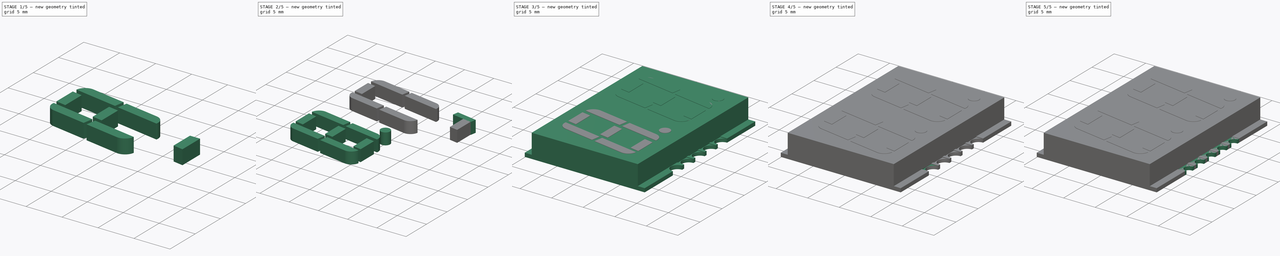
[diagram: build sequence overview — one tinted view per stage of 5, left to right]
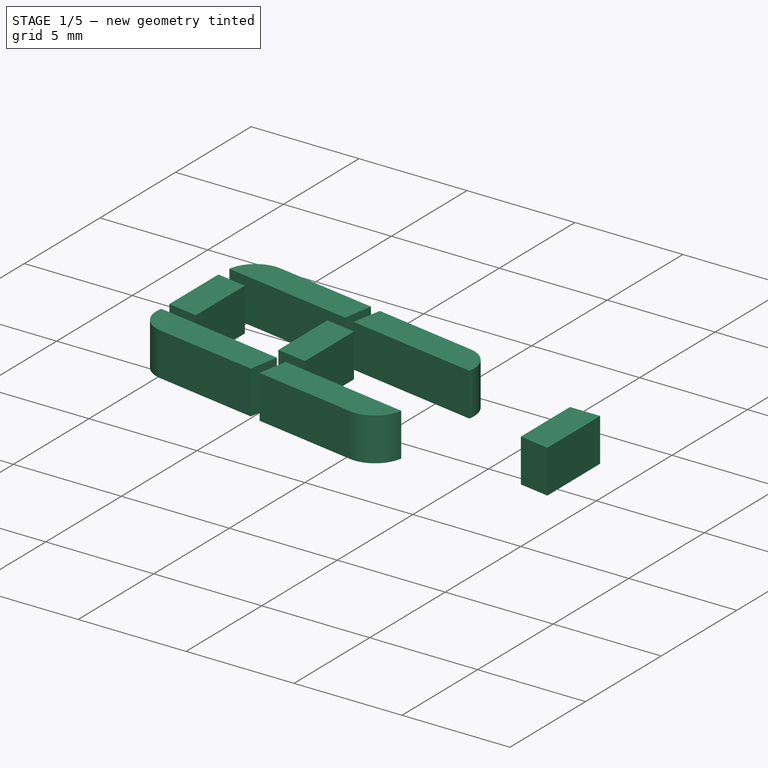
[diagram: stage 1 of 5 — iso view after this stage's code; geometry added in this stage tinted green]
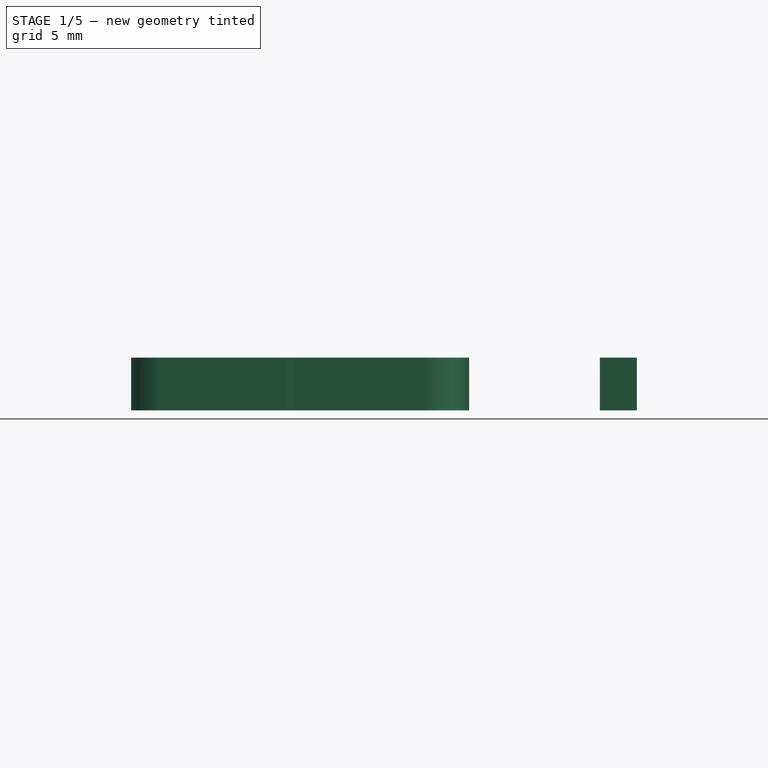
[diagram: stage 1 of 5 — front view after this stage's code; geometry added in this stage tinted green]
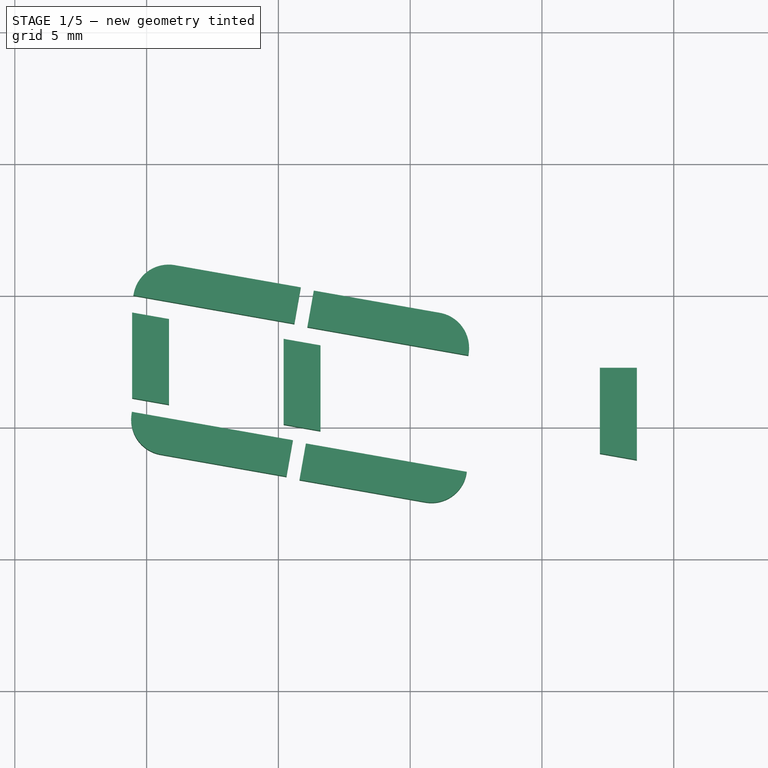
[diagram: stage 1 of 5 — top view after this stage's code; geometry added in this stage tinted green]
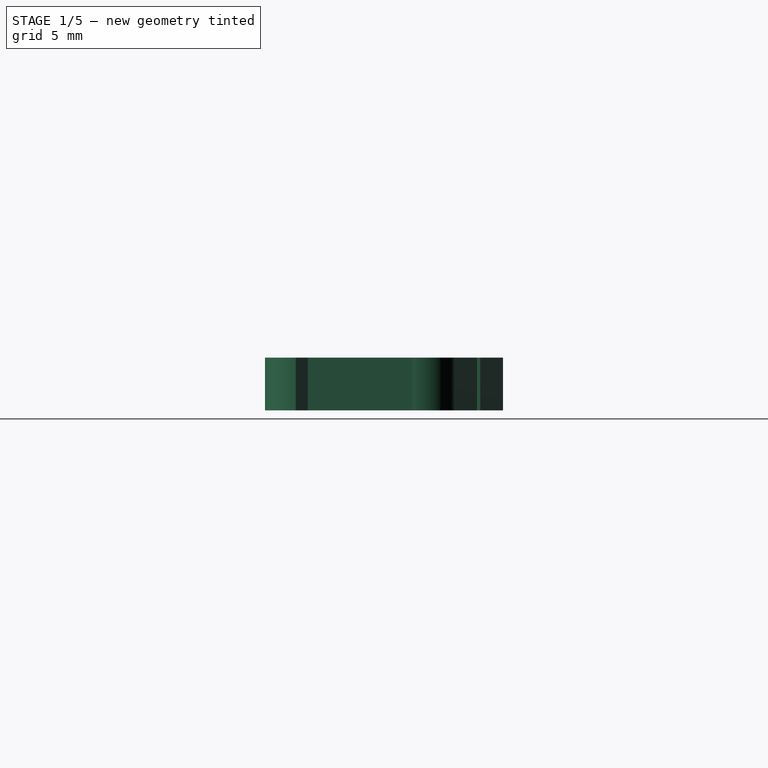
[diagram: stage 1 of 5 — right view after this stage's code; geometry added in this stage tinted green]
FCSTD DOCUMENT  (FreeCAD 0.17R11223 (Git))
Label: HDSM-541B_HDSM-543B_3
License: All rights reserved
LicenseURL: http://en.wikipedia.org/wiki/All_rights_reserved
objects: Part::Box×48, Part::Cut×34, Part::Cylinder×12, Part::Fillet×8, Part::MultiFuse×2, Sketcher::SketchObject×1, PartDesign::Pad×1, PartDesign::Body×1
note: 108 computed .brp shape members not serialized (recipe doc carries the construction recipe); baked Part::Feature solids carry a one-line shape summary decoded from their .brp

FEATURE [Part::Box] Box035  label="Kub035"
  AttacherType = Attacher::AttachEngine3D
  Height = 2
  Length = 6.2
  Placement = pos=(1.1,8.8,1.8) rot=(0,0,-1;0.174533rad)
  Width = 1.4
FEATURE [Part::Box] Box036  label="Kub036"
  AttacherType = Attacher::AttachEngine3D
  Height = 2
  Length = 6.2
  Placement = pos=(-5.5,10,1.8) rot=(0,0,-1;0.174533rad)
  Width = 1.4
FEATURE [Part::Box] Box037  label="Kub037"
  AttacherType = Attacher::AttachEngine3D
  Height = 2
  Length = 6.2
  Placement = pos=(0.8,3,1.8) rot=(0,0,-1;0.174533rad)
  Width = 1.4
FEATURE [Part::Box] Box038  label="Kub038"
  AttacherType = Attacher::AttachEngine3D
  Height = 2
  Length = 6.2
  Placement = pos=(-5.8,4.2,1.8) rot=(0,0,-1;0.174533rad)
  Width = 1.4
FEATURE [Part::Box] Box039  label="Kub039"
  AttacherType = Attacher::AttachEngine3D
  Height = 2
  Length = 1.4
  Placement = pos=(12.2,3.75,1.8) rot=(0,0,1;0rad)
  Width = 3.5
FEATURE [Part::Box] Box040  label="Kub040"
  AttacherType = Attacher::AttachEngine3D
  Height = 2
  Length = 3.5
  Placement = pos=(10.2,3.34,1.8) rot=(0,0,-1;0.174533rad)
  Width = 1
FEATURE [Part::Cut] Cut040
  Base = -> Box039
  Tool = -> Box040
FEATURE [Part::Box] Box042  label="Kub042"
  AttacherType = Attacher::AttachEngine3D
  Height = 2
  Length = 1.4
  Placement = pos=(12.2,3.75,1.8) rot=(0,0,1;0rad)
  Width = 3.5
FEATURE [Part::Box] Box043  label="Kub043"
  AttacherType = Attacher::AttachEngine3D
  Height = 2
  Length = 3.5
  Placement = pos=(10.2,3.34,1.8) rot=(0,0,-1;0.174533rad)
  Width = 1
FEATURE [Part::Box] Box044  label="Kub044"
  AttacherType = Attacher::AttachEngine3D
  Height = 2
  Length = 3.5
  Placement = pos=(10.2,7.6,1.8) rot=(0,0,-1;0.174533rad)
  Width = 1
FEATURE [Part::Cut] Cut042
  Base = -> Box042
  Tool = -> Box043
FEATURE [Part::Cut] Cut043
  Base = -> Cut042
  Placement = pos=(-12,1.1,0) rot=(0,0,1;0rad)
  Tool = -> Box044
FEATURE [Part::Box] Box045  label="Kub045"
  AttacherType = Attacher::AttachEngine3D
  Height = 2
  Length = 1.4
  Placement = pos=(12.2,3.75,1.8) rot=(0,0,1;0rad)
  Width = 3.5
FEATURE [Part::Box] Box046  label="Kub046"
  AttacherType = Attacher::AttachEngine3D
  Height = 2
  Length = 3.5
  Placement = pos=(10.2,3.34,1.8) rot=(0,0,-1;0.174533rad)
  Width = 1
FEATURE [Part::Box] Box047  label="Kub047"
  AttacherType = Attacher::AttachEngine3D
  Height = 2
  Length = 3.5
  Placement = pos=(10.2,7.6,1.8) rot=(0,0,-1;0.174533rad)
  Width = 1
FEATURE [Part::Cut] Cut044
  Base = -> Box045
  Tool = -> Box046
FEATURE [Part::Cut] Cut045
  Base = -> Cut044
  Placement = pos=(-17.75,2.1,0) rot=(0,0,1;0rad)
  Tool = -> Box047
FEATURE [Part::Fillet] Fillet004
  Base = -> Box035
  Edges = 1 edges r=1.35: [Edge7]
FEATURE [Part::Fillet] Fillet005
  Base = -> Box037
  Edges = 1 edges r=1.35: [Edge5]
FEATURE [Part::Fillet] Fillet006
  Base = -> Box036
  Edges = 1 edges r=1.35: [Edge3]
FEATURE [Part::Fillet] Fillet007
  Base = -> Box038
  Edges = 1 edges r=1.35: [Edge1]
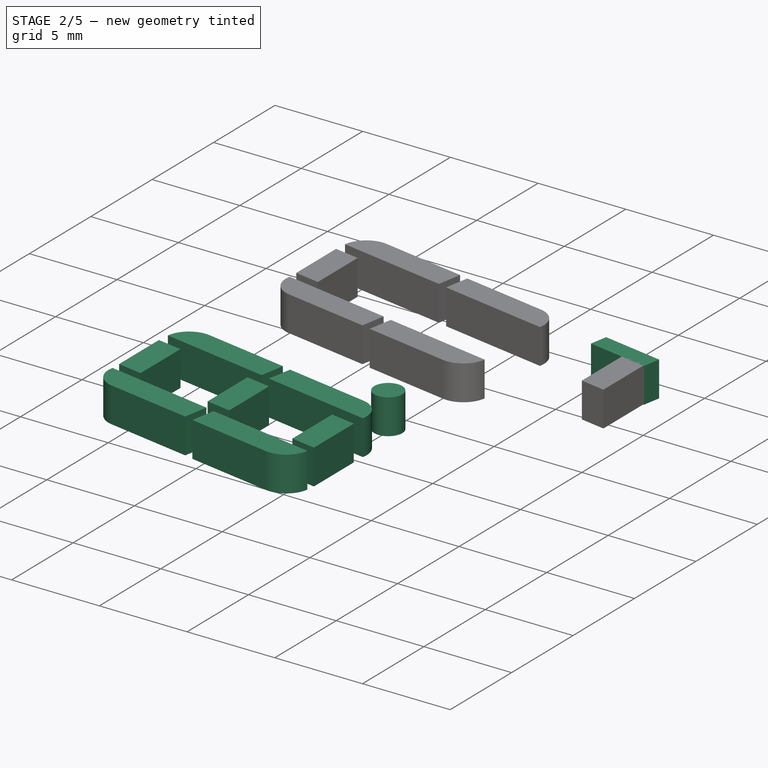
[diagram: stage 2 of 5 — iso view after this stage's code; geometry added in this stage tinted green]
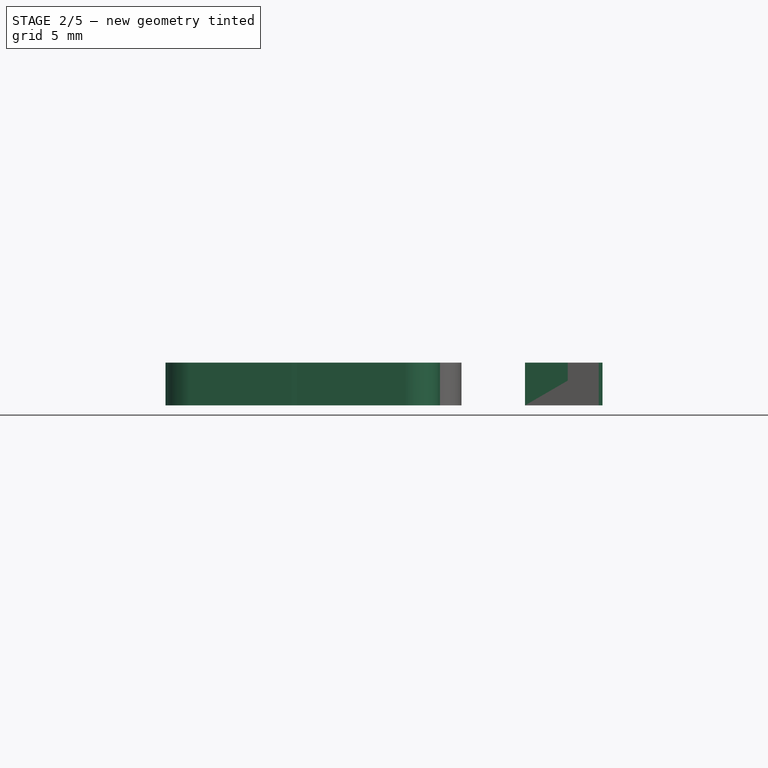
[diagram: stage 2 of 5 — front view after this stage's code; geometry added in this stage tinted green]
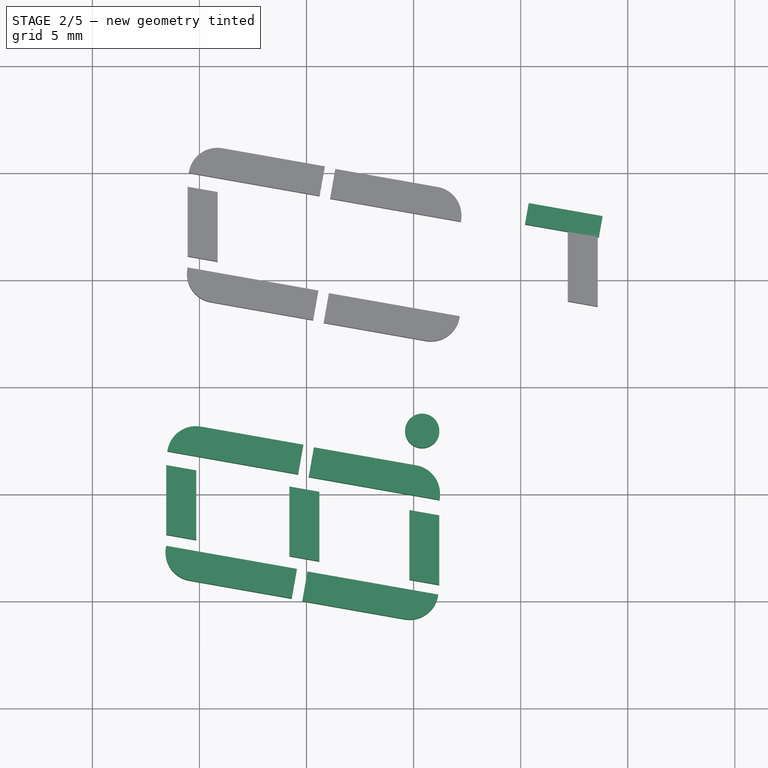
[diagram: stage 2 of 5 — top view after this stage's code; geometry added in this stage tinted green]
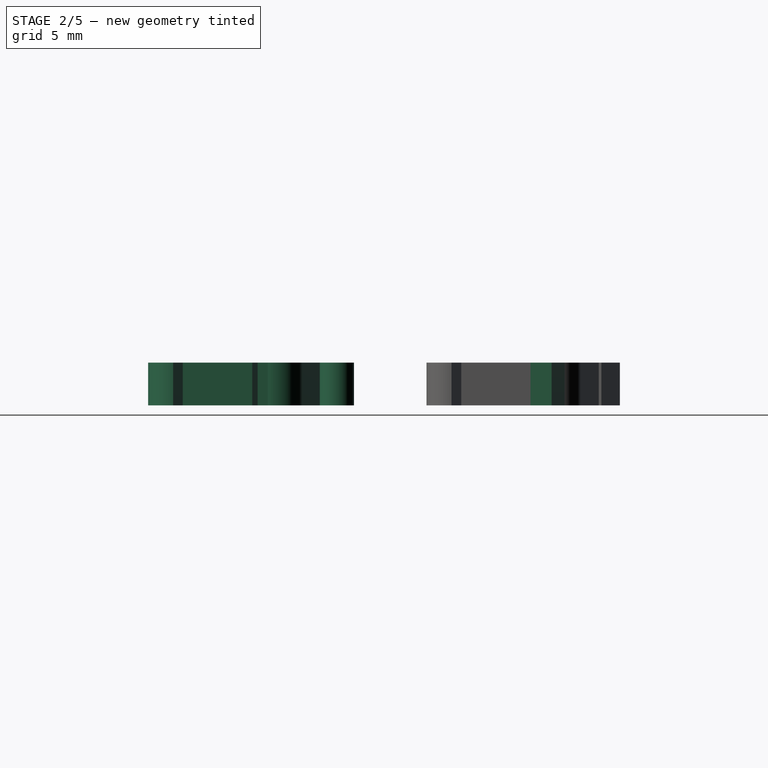
[diagram: stage 2 of 5 — right view after this stage's code; geometry added in this stage tinted green]
FEATURE [Part::Box] Box022  label="Kub022"
  AttacherType = Attacher::AttachEngine3D
  Height = 2
  Length = 6.2
  Placement = pos=(1.1,8.8,1.8) rot=(0,0,-1;0.174533rad)
  Width = 1.4
FEATURE [Part::Box] Box023  label="Kub023"
  AttacherType = Attacher::AttachEngine3D
  Height = 2
  Length = 6.2
  Placement = pos=(-5.5,10,1.8) rot=(0,0,-1;0.174533rad)
  Width = 1.4
FEATURE [Part::Box] Box024  label="Kub024"
  AttacherType = Attacher::AttachEngine3D
  Height = 2
  Length = 6.2
  Placement = pos=(0.8,3,1.8) rot=(0,0,-1;0.174533rad)
  Width = 1.4
FEATURE [Part::Box] Box025  label="Kub025"
  AttacherType = Attacher::AttachEngine3D
  Height = 2
  Length = 6.2
  Placement = pos=(-5.8,4.2,1.8) rot=(0,0,-1;0.174533rad)
  Width = 1.4
FEATURE [Part::Box] Box029  label="Kub029"
  AttacherType = Attacher::AttachEngine3D
  Height = 2
  Length = 1.4
  Placement = pos=(12.2,3.75,1.8) rot=(0,0,1;0rad)
  Width = 3.5
FEATURE [Part::Box] Box030  label="Kub030"
  AttacherType = Attacher::AttachEngine3D
  Height = 2
  Length = 3.5
  Placement = pos=(10.2,3.34,1.8) rot=(0,0,-1;0.174533rad)
  Width = 1
FEATURE [Part::Box] Box031  label="Kub031"
  AttacherType = Attacher::AttachEngine3D
  Height = 2
  Length = 3.5
  Placement = pos=(10.2,7.6,1.8) rot=(0,0,-1;0.174533rad)
  Width = 1
FEATURE [Part::Cut] Cut036
  Base = -> Box029
  Tool = -> Box030
FEATURE [Part::Box] Box032  label="Kub032"
  AttacherType = Attacher::AttachEngine3D
  Height = 2
  Length = 1.4
  Placement = pos=(12.2,3.75,1.8) rot=(0,0,1;0rad)
  Width = 3.5
FEATURE [Part::Box] Box033  label="Kub033"
  AttacherType = Attacher::AttachEngine3D
  Height = 2
  Length = 3.5
  Placement = pos=(10.2,3.34,1.8) rot=(0,0,-1;0.174533rad)
  Width = 1
FEATURE [Part::Box] Box034  label="Kub034"
  AttacherType = Attacher::AttachEngine3D
  Height = 2
  Length = 3.5
  Placement = pos=(10.2,7.6,1.8) rot=(0,0,-1;0.174533rad)
  Width = 1
FEATURE [Part::Cut] Cut038
  Base = -> Box032
  Tool = -> Box033
FEATURE [Part::Cut] Cut039
  Base = -> Cut038
  Placement = pos=(-17.75,2.1,0) rot=(0,0,1;0rad)
  Tool = -> Box034
FEATURE [Part::Fillet] Fillet
  Base = -> Box022
  Edges = 1 edges r=1.35: [Edge7]
FEATURE [Part::Fillet] Fillet001
  Base = -> Box024
  Edges = 1 edges r=1.35: [Edge5]
FEATURE [Part::Fillet] Fillet002
  Base = -> Box023
  Edges = 1 edges r=1.35: [Edge3]
FEATURE [Part::Fillet] Fillet003
  Base = -> Box025
  Edges = 1 edges r=1.35: [Edge1]
FEATURE [Part::Cylinder] Cylinder011
  Angle = 360
  AttacherType = Attacher::AttachEngine3D
  Height = 2
  Placement = pos=(6.4,10.95,1.8) rot=(0,0,1;0rad)
  Radius = 0.8
FEATURE [Part::Box] Box041  label="Kub041"
  AttacherType = Attacher::AttachEngine3D
  Height = 2
  Length = 3.5
  Placement = pos=(10.2,7.6,1.8) rot=(0,0,-1;0.174533rad)
  Width = 1
FEATURE [Part::Cut] Cut041
  Base = -> Cut040
  Placement = pos=(-6.4,0,0) rot=(0,0,1;0rad)
  Tool = -> Box041
FEATURE [Part::MultiFuse] Fusion001  label="Digit003"
  Placement = pos=(-1,-13,0) rot=(0,0,1;0rad)
  Shapes = -> [Cylinder011,Cut045,Fillet005,Fillet006,Fillet007,Fillet004,Cut043,Cut041]
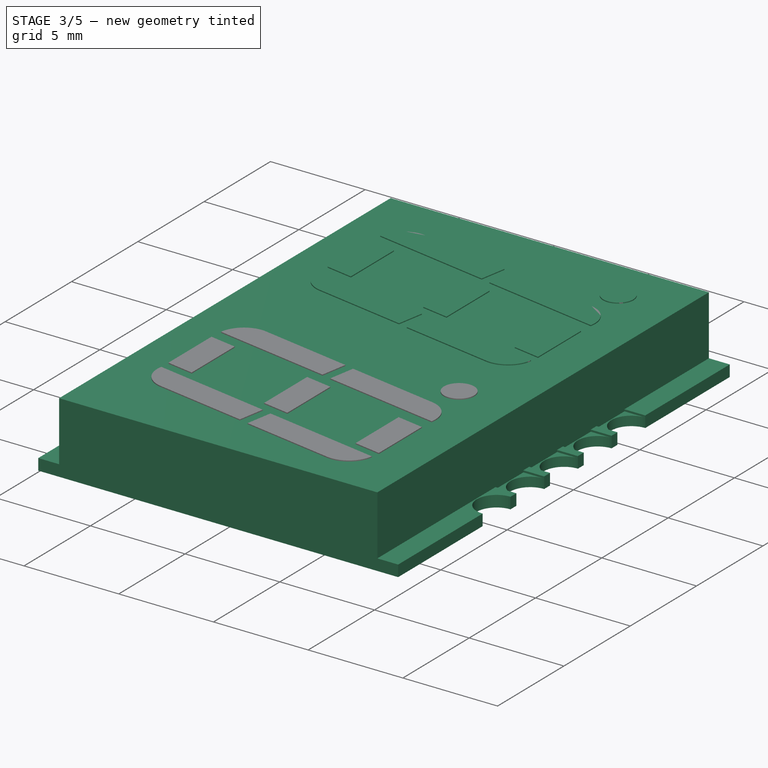
[diagram: stage 3 of 5 — iso view after this stage's code; geometry added in this stage tinted green]
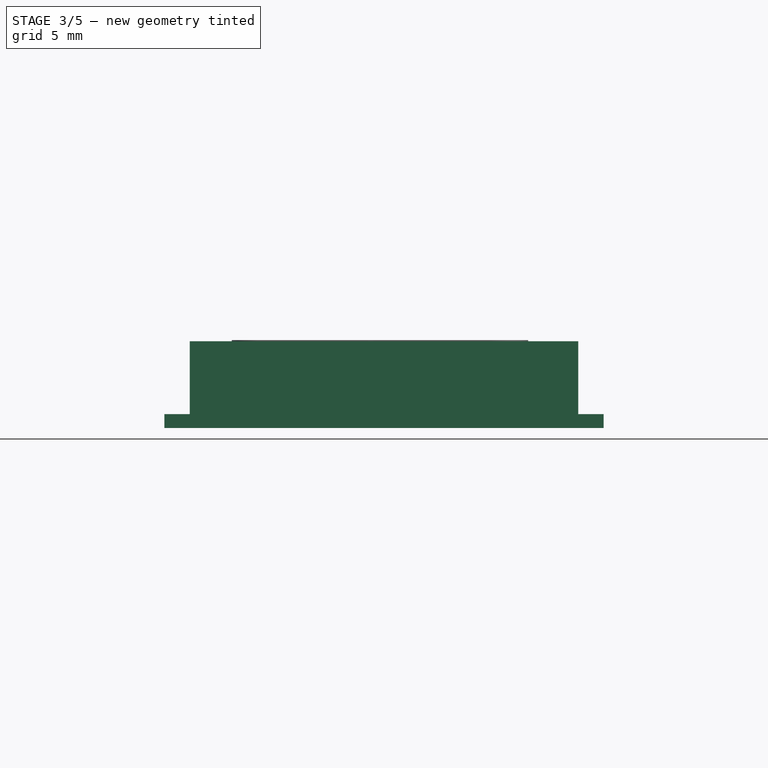
[diagram: stage 3 of 5 — front view after this stage's code; geometry added in this stage tinted green]
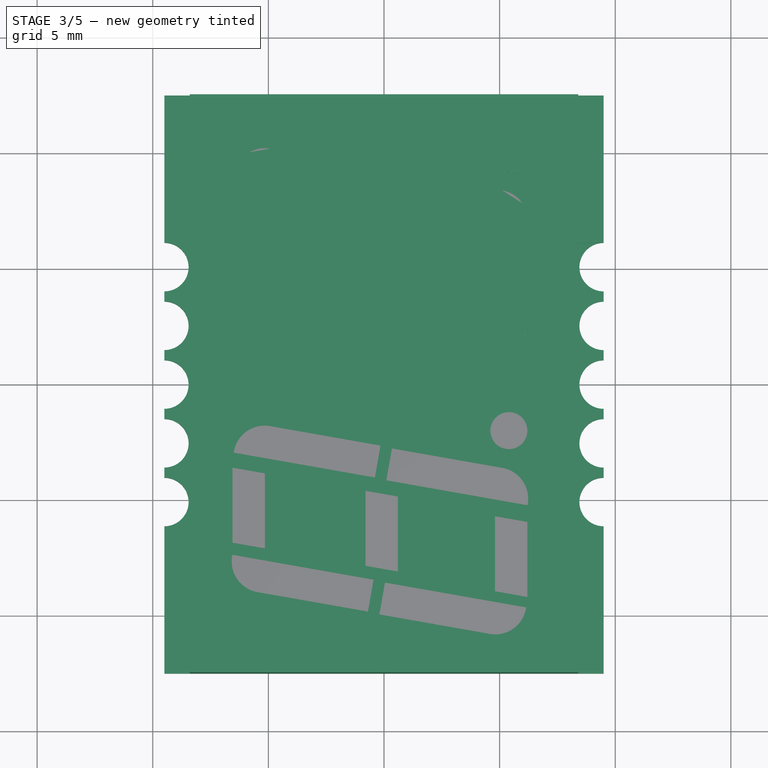
[diagram: stage 3 of 5 — top view after this stage's code; geometry added in this stage tinted green]
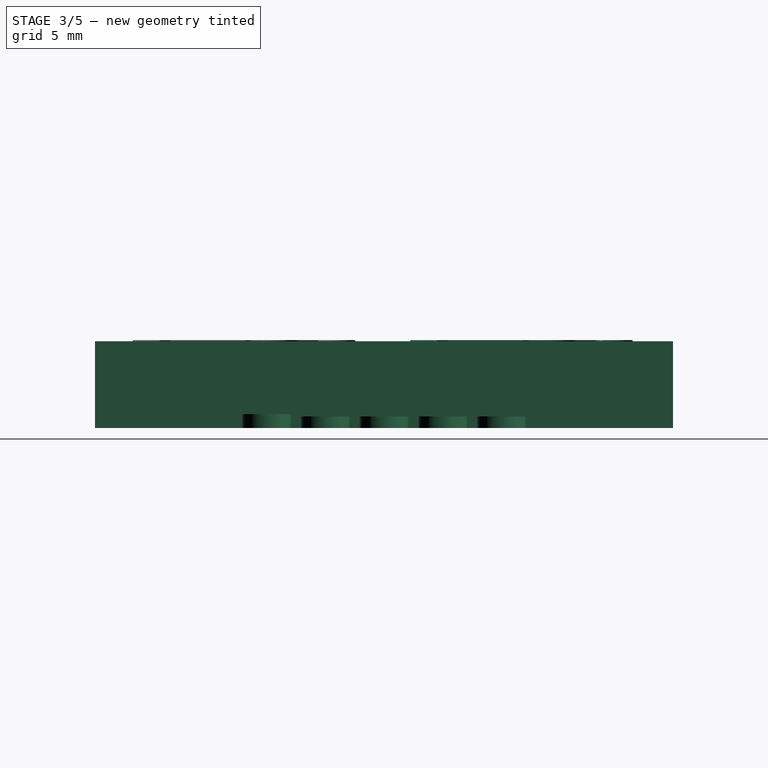
[diagram: stage 3 of 5 — right view after this stage's code; geometry added in this stage tinted green]
FEATURE [Sketcher::SketchObject] Sketch
  MapMode = 5
  Support = -> [XY_Plane]
  sketch-geometry (24):
    g0: LineSegment StartX=-9.5 StartY=12.5 StartZ=0 EndX=9.5 EndY=12.5 EndZ=0
    g1: LineSegment StartX=-9.5 StartY=-12.5 StartZ=0 EndX=9.5 EndY=-12.5 EndZ=0
    g2: ArcOfCircle CenterX=-9.5 CenterY=5.08 CenterZ=0 NormalX=0 NormalY=0 NormalZ=1 Radius=1.05 StartAngle=4.71239 EndAngle=7.85398
    g3: ArcOfCircle CenterX=-9.5 CenterY=2.54 CenterZ=0 NormalX=0 NormalY=0 NormalZ=1 Radius=1.05 StartAngle=4.71239 EndAngle=7.85398
    g4: ArcOfCircle CenterX=-9.5 CenterY=0 CenterZ=0 NormalX=0 NormalY=0 NormalZ=1 Radius=1.05 StartAngle=4.71239 EndAngle=7.85398
    g5: ArcOfCircle CenterX=-9.5 CenterY=-2.54 CenterZ=0 NormalX=0 NormalY=0 NormalZ=1 Radius=1.05 StartAngle=4.71239 EndAngle=7.85398
    g6: ArcOfCircle CenterX=-9.5 CenterY=-5.08 CenterZ=0 NormalX=0 NormalY=0 NormalZ=1 Radius=1.05 StartAngle=4.71239 EndAngle=7.85398
    g7: ArcOfCircle CenterX=9.5 CenterY=5.08 CenterZ=0 NormalX=0 NormalY=0 NormalZ=1 Radius=1.05 StartAngle=1.5708 EndAngle=4.71239
    g8: ArcOfCircle CenterX=9.5 CenterY=2.54 CenterZ=0 NormalX=0 NormalY=0 NormalZ=1 Radius=1.05 StartAngle=1.5708 EndAngle=4.71239
    g9: ArcOfCircle CenterX=9.5 CenterY=0 CenterZ=0 NormalX=0 NormalY=0 NormalZ=1 Radius=1.05 StartAngle=1.5708 EndAngle=4.71239
    g10: ArcOfCircle CenterX=9.5 CenterY=-2.54 CenterZ=0 NormalX=0 NormalY=0 NormalZ=1 Radius=1.05 StartAngle=1.5708 EndAngle=4.71239
    g11: ArcOfCircle CenterX=9.5 CenterY=-5.08 CenterZ=0 NormalX=0 NormalY=0 NormalZ=1 Radius=1.05 StartAngle=1.5708 EndAngle=4.71239
    g12: LineSegment StartX=9.5 StartY=12.5 StartZ=0 EndX=9.5 EndY=6.13 EndZ=0
    g13: LineSegment StartX=9.5 StartY=4.03 StartZ=0 EndX=9.5 EndY=3.59 EndZ=0
    g14: LineSegment StartX=9.5 StartY=1.49 StartZ=0 EndX=9.5 EndY=1.05 EndZ=0
    g15: LineSegment StartX=9.5 StartY=-1.05 StartZ=0 EndX=9.5 EndY=-1.49 EndZ=0
    g16: LineSegment StartX=9.5 StartY=-3.59 StartZ=0 EndX=9.5 EndY=-4.03 EndZ=0
    g17: LineSegment StartX=9.5 StartY=-6.13 StartZ=0 EndX=9.5 EndY=-12.5 EndZ=0
    g18: LineSegment StartX=-9.5 StartY=12.5 StartZ=0 EndX=-9.5 EndY=6.13 EndZ=0
    g19: LineSegment StartX=-9.5 StartY=4.03 StartZ=0 EndX=-9.5 EndY=3.59 EndZ=0
    g20: LineSegment StartX=-9.5 StartY=1.49 StartZ=0 EndX=-9.5 EndY=1.05 EndZ=0
    g21: LineSegment StartX=-9.5 StartY=-1.05 StartZ=0 EndX=-9.5 EndY=-1.49 EndZ=0
    g22: LineSegment StartX=-9.5 StartY=-3.59 StartZ=0 EndX=-9.5 EndY=-4.03 EndZ=0
    g23: LineSegment StartX=-9.5 StartY=-6.13 StartZ=0 EndX=-9.5 EndY=-12.5 EndZ=0
  constraints (82):
    c: Horizontal(g0)
    c: Horizontal(g1)
    c: DistanceX(g0,g0) = 19
    c: DistanceX(g1,g1) = 19
    c: DistanceX(g0,g2) = 0
    c: DistanceX(g2,g2) = 0
    c: Radius(g6) = 1.05
    c: Equal(g6,g5)
    c: Equal(g6,g4)
    c: Equal(g6,g3)
    c: Equal(g6,g2)
    c: DistanceX(g2,g2) = 0
    c: DistanceX(g2,g3) = 0
    c: DistanceX(g3,g3) = 0
    c: DistanceX(g3,g3) = 0
    c: DistanceX(g3,g4) = 0
    c: DistanceX(g4,g4) = 0
    c: DistanceX(g4,g4) = 0
    c: DistanceX(g4,g5) = 0
    c: DistanceX(g5,g5) = 0
    c: DistanceX(g5,g5) = 0
    c: DistanceX(g5,g6) = 0
    c: DistanceX(g6,g6) = 0
    c: DistanceX(g6,g6) = 0
    c: DistanceY(g3,g2) = 2.54
    c: DistanceY(g4,g3) = 2.54
    c: DistanceY(g5,g4) = 2.54
    c: DistanceY(g6,g5) = 2.54
    c: DistanceY(g4,g0) = 12.5
    c: DistanceY(g1,g0) = 25
    c: DistanceX(g6,g1) = 0
    c: Radius(g11) = 1.05
    c: Equal(g11,g10)
    c: Equal(g11,g9)
    c: Equal(g11,g8)
    c: Equal(g11,g7)
    c: DistanceX(g7,g0) = 0
    c: DistanceX(g7,g7) = 0
    c: DistanceX(g7,g7) = 0
    c: DistanceX(g8,g7) = 0
    c: DistanceX(g8,g8) = 0
    c: DistanceX(g8,g8) = 0
    c: DistanceX(g8,g9) = 0
    c: DistanceX(g9,g9) = 0
    c: DistanceX(g9,g9) = 0
    c: DistanceX(g9,g10) = 0
    c: DistanceX(g10,g10) = 0
    c: DistanceX(g10,g10) = 0
    c: DistanceX(g11,g11) = 0
    c: DistanceX(g11,g11) = 0
    c: DistanceY(g8,g7) = 2.54
    c: DistanceY(g9,g8) = 2.54
    c: DistanceY(g10,g9) = 2.54
    c: DistanceY(g11,g10) = 2.54
    c: DistanceY(g9,g0) = 12.5
    c: Coincident(g12,g0)
    c: Coincident(g12,g7)
    c: Coincident(g13,g7)
    c: Coincident(g13,g8)
    c: Coincident(g14,g8)
    c: Coincident(g14,g9)
    c: Coincident(g15,g9)
    c: Coincident(g15,g10)
    c: Coincident(g16,g10)
    c: Coincident(g16,g11)
    c: Vertical(g16)
    c: Coincident(g17,g11)
    c: Coincident(g17,g1)
    c: DistanceY(g4,g-1) = 0
    c: DistanceX(g4,g-1) = 9.5
    c: Coincident(g18,g0)
    c: Coincident(g18,g2)
    c: Coincident(g19,g2)
    c: Coincident(g19,g3)
    c: Coincident(g20,g3)
    c: Coincident(g20,g4)
    c: Coincident(g21,g4)
    c: Coincident(g21,g5)
    c: Coincident(g22,g5)
    c: Coincident(g22,g6)
    c: Coincident(g23,g6)
    c: Coincident(g23,g1)
FEATURE [PartDesign::Pad] Pad
  Length = 3.75
  Length2 = 100
  Profile = -> Sketch
  Type = 0
FEATURE [PartDesign::Body] Body
  Group = -> [Sketch,Pad]
  Origin = -> BodyOrigin
  Tip = -> Pad
FEATURE [Part::Box] Box  label="Kub"
  AttacherType = Attacher::AttachEngine3D
  Height = 4
  Length = 2
  Placement = pos=(8.4,-14,0.6) rot=(0,0,1;0rad)
  Width = 27
FEATURE [Part::Box] Box001  label="Kub001"
  AttacherType = Attacher::AttachEngine3D
  Height = 4
  Length = 2
  Placement = pos=(-10.4,-14,0.6) rot=(0,0,1;0rad)
  Width = 27
FEATURE [Part::Box] Box002  label="Kub002"
  AttacherType = Attacher::AttachEngine3D
  Height = 1
  Length = 1.1
  Placement = pos=(8.4,-1.05,0.5) rot=(0,0,1;0rad)
  Width = 2.1
FEATURE [Part::Box] Box003  label="Kub003"
  AttacherType = Attacher::AttachEngine3D
  Height = 1
  Length = 1.1
  Placement = pos=(8.4,1.49,0.5) rot=(0,0,1;0rad)
  Width = 2.1
FEATURE [Part::Box] Box004  label="Kub004"
  AttacherType = Attacher::AttachEngine3D
  Height = 1
  Length = 1.1
  Placement = pos=(8.4,4.03,0.5) rot=(0,0,1;0rad)
  Width = 2.1
FEATURE [Part::Box] Box005  label="Kub005"
  AttacherType = Attacher::AttachEngine3D
  Height = 1
  Length = 1.1
  Placement = pos=(8.4,-3.59,0.5) rot=(0,0,1;0rad)
  Width = 2.1
FEATURE [Part::Cut] Cut
  Base = -> Body
  Tool = -> Box
FEATURE [Part::Cut] Cut013
  Base = -> Cut
  Tool = -> Box001
FEATURE [Part::Cut] Cut014
  Base = -> Cut013
  Tool = -> Box002
FEATURE [Part::Cut] Cut015
  Base = -> Cut014
  Tool = -> Box003
FEATURE [Part::Cut] Cut016
  Base = -> Cut015
  Tool = -> Box004
FEATURE [Part::Cut] Cut017
  Base = -> Cut016
  Tool = -> Box005
FEATURE [Part::Cylinder] Cylinder010
  Angle = 360
  AttacherType = Attacher::AttachEngine3D
  Height = 2
  Placement = pos=(6.4,10.95,1.8) rot=(0,0,1;0rad)
  Radius = 0.8
FEATURE [Part::Box] Box026  label="Kub026"
  AttacherType = Attacher::AttachEngine3D
  Height = 2
  Length = 1.4
  Placement = pos=(12.2,3.75,1.8) rot=(0,0,1;0rad)
  Width = 3.5
FEATURE [Part::Box] Box027  label="Kub027"
  AttacherType = Attacher::AttachEngine3D
  Height = 2
  Length = 3.5
  Placement = pos=(10.2,3.34,1.8) rot=(0,0,-1;0.174533rad)
  Width = 1
FEATURE [Part::Box] Box028  label="Kub028"
  AttacherType = Attacher::AttachEngine3D
  Height = 2
  Length = 3.5
  Placement = pos=(10.2,7.6,1.8) rot=(0,0,-1;0.174533rad)
  Width = 1
FEATURE [Part::Cut] Cut034
  Base = -> Box026
  Tool = -> Box027
FEATURE [Part::Cut] Cut035
  Base = -> Cut034
  Placement = pos=(-6.4,0,0) rot=(0,0,1;0rad)
  Tool = -> Box028
FEATURE [Part::Cut] Cut037
  Base = -> Cut036
  Placement = pos=(-12,1.1,0) rot=(0,0,1;0rad)
  Tool = -> Box031
FEATURE [Part::MultiFuse] Fusion  label="Digit2"
  Placement = pos=(-1,-1,0) rot=(0,0,1;0rad)
  Shapes = -> [Cylinder010,Cut039,Fillet001,Fillet002,Fillet003,Fillet,Cut037,Cut035]
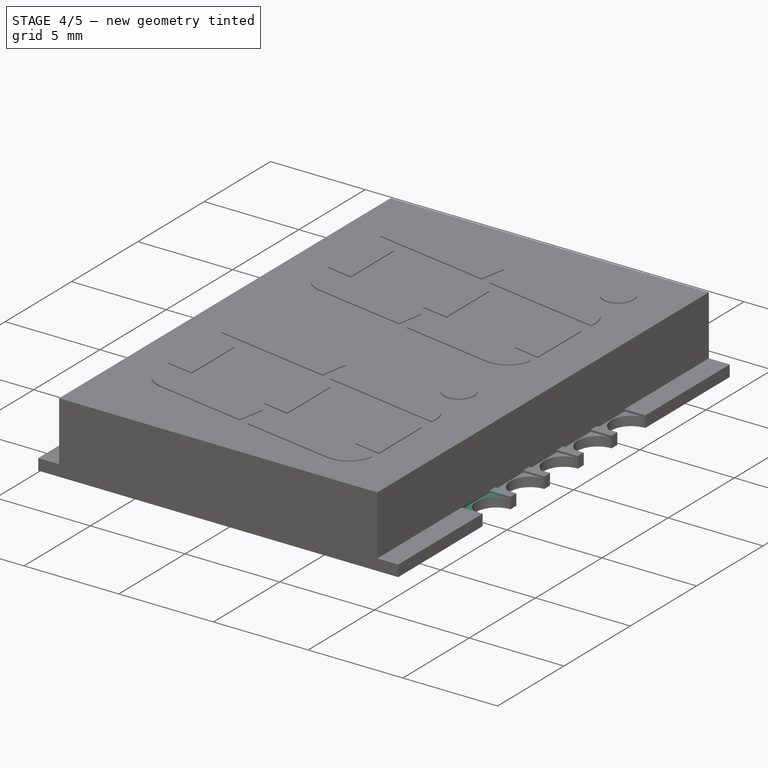
[diagram: stage 4 of 5 — iso view after this stage's code; geometry added in this stage tinted green]
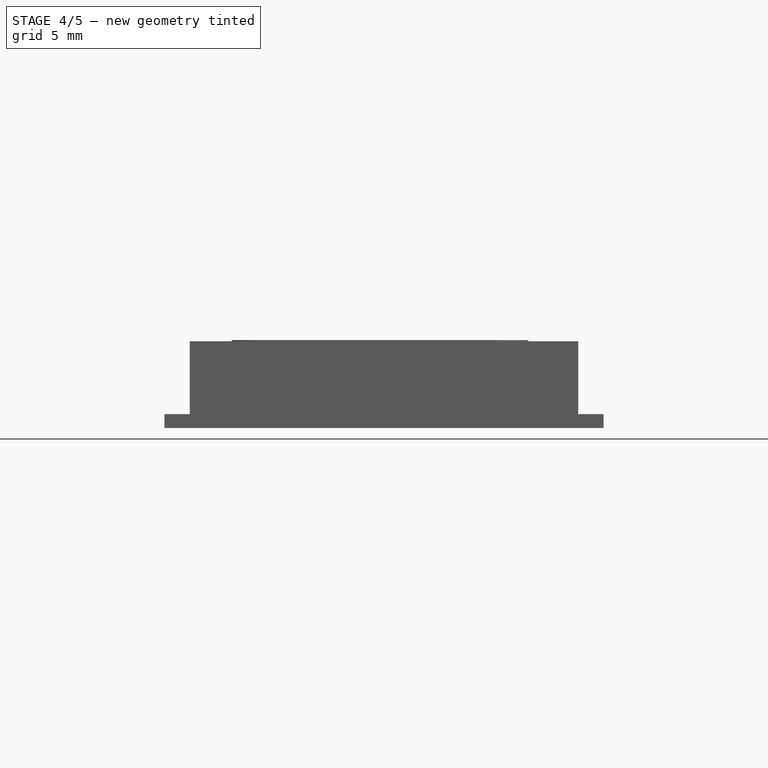
[diagram: stage 4 of 5 — front view after this stage's code; geometry added in this stage tinted green]
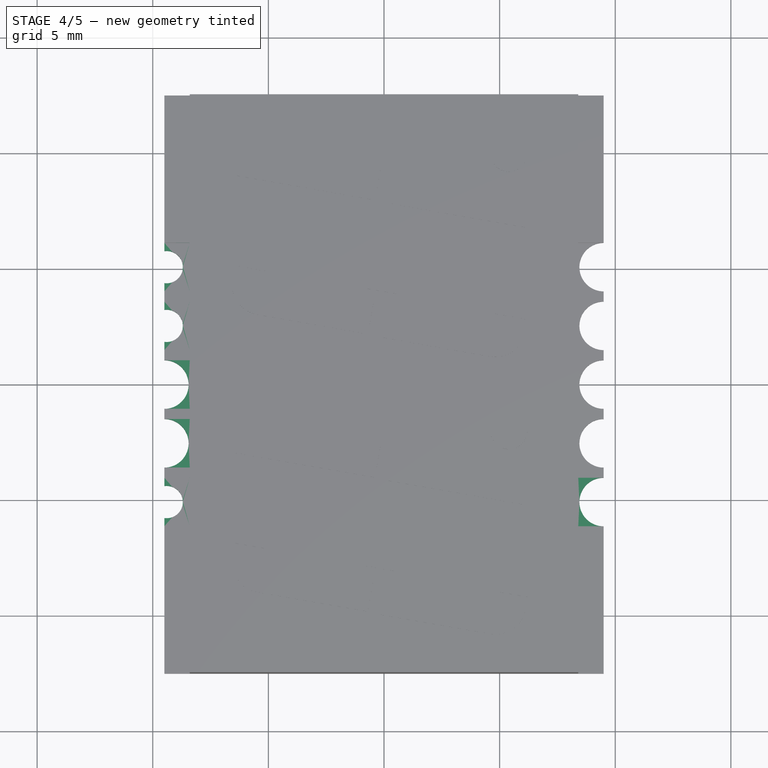
[diagram: stage 4 of 5 — top view after this stage's code; geometry added in this stage tinted green]
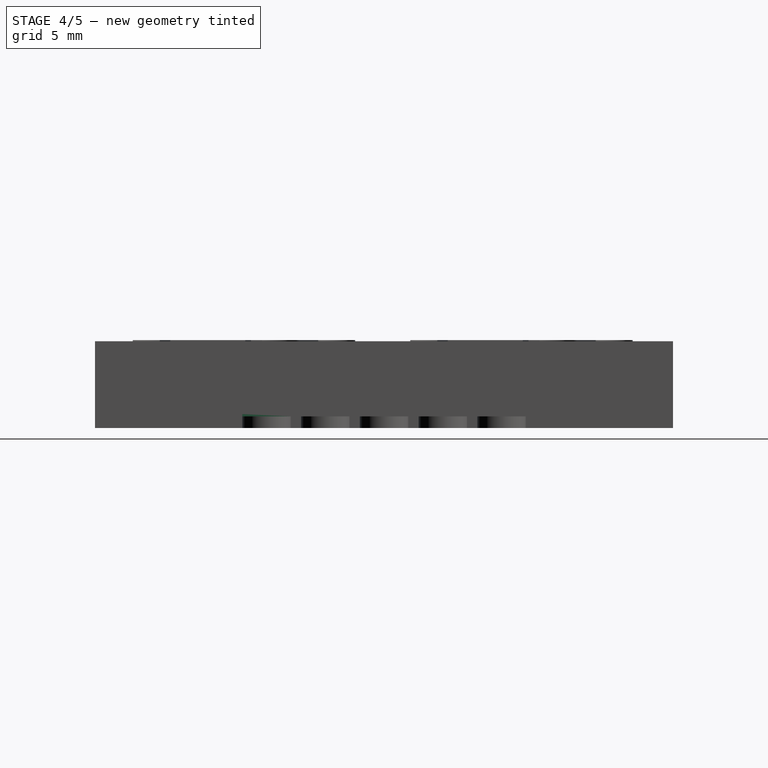
[diagram: stage 4 of 5 — right view after this stage's code; geometry added in this stage tinted green]
FEATURE [Part::Box] Box006  label="Kub006"
  AttacherType = Attacher::AttachEngine3D
  Height = 1
  Length = 1.1
  Placement = pos=(8.4,-6.13,0.5) rot=(0,0,1;0rad)
  Width = 2.1
FEATURE [Part::Box] Box007  label="Kub007"
  AttacherType = Attacher::AttachEngine3D
  Height = 1
  Length = 1.1
  Placement = pos=(-9.5,-1.05,0.5) rot=(0,0,1;0rad)
  Width = 2.1
FEATURE [Part::Box] Box008  label="Kub008"
  AttacherType = Attacher::AttachEngine3D
  Height = 1
  Length = 1.1
  Placement = pos=(-9.5,1.49,0.5) rot=(0,0,1;0rad)
  Width = 2.1
FEATURE [Part::Box] Box009  label="Kub009"
  AttacherType = Attacher::AttachEngine3D
  Height = 1
  Length = 1.1
  Placement = pos=(-9.5,4.03,0.5) rot=(0,0,1;0rad)
  Width = 2.1
FEATURE [Part::Box] Box010  label="Kub010"
  AttacherType = Attacher::AttachEngine3D
  Height = 1
  Length = 1.1
  Placement = pos=(-9.5,-3.59,0.5) rot=(0,0,1;0rad)
  Width = 2.1
FEATURE [Part::Box] Box011  label="Kub011"
  AttacherType = Attacher::AttachEngine3D
  Height = 1
  Length = 1.1
  Placement = pos=(-9.5,-6.13,0.5) rot=(0,0,1;0rad)
  Width = 2.1
FEATURE [Part::Cut] Cut018
  Base = -> Cut017
  Tool = -> Box006
FEATURE [Part::Cut] Cut019
  Base = -> Cut018
  Tool = -> Box007
FEATURE [Part::Cut] Cut020
  Base = -> Cut019
  Tool = -> Box008
FEATURE [Part::Cut] Cut021
  Base = -> Cut020
  Tool = -> Box009
FEATURE [Part::Box] Box019  label="Kub019"
  AttacherType = Attacher::AttachEngine3D
  Height = 0.55
  Length = 1.1
  Placement = pos=(8.4,-1.05,0) rot=(0,0,1;0rad)
  Width = 2.1
FEATURE [Part::Cylinder] Cylinder007
  Angle = 360
  AttacherType = Attacher::AttachEngine3D
  Height = 0.55
  Placement = pos=(9.4,0,0) rot=(0,0,1;0rad)
  Radius = 0.7
FEATURE [Part::Cut] Cut029
  Base = -> Box019
  Placement = pos=(0,-5.08,0) rot=(0,0,1;3.14159rad)
  Tool = -> Cylinder007
FEATURE [Part::Box] Box020  label="Kub020"
  AttacherType = Attacher::AttachEngine3D
  Height = 0.55
  Length = 1.1
  Placement = pos=(8.4,-1.05,0) rot=(0,0,1;0rad)
  Width = 2.1
FEATURE [Part::Cylinder] Cylinder008
  Angle = 360
  AttacherType = Attacher::AttachEngine3D
  Height = 0.55
  Placement = pos=(9.4,0,0) rot=(0,0,1;0rad)
  Radius = 0.7
FEATURE [Part::Cut] Cut030
  Base = -> Box020
  Placement = pos=(0,2.54,0) rot=(0,0,1;3.14159rad)
  Tool = -> Cylinder008
FEATURE [Part::Box] Box021  label="Kub021"
  AttacherType = Attacher::AttachEngine3D
  Height = 0.55
  Length = 1.1
  Placement = pos=(8.4,-1.05,0) rot=(0,0,1;0rad)
  Width = 2.1
FEATURE [Part::Cylinder] Cylinder009
  Angle = 360
  AttacherType = Attacher::AttachEngine3D
  Height = 0.55
  Placement = pos=(9.4,0,0) rot=(0,0,1;0rad)
  Radius = 0.7
FEATURE [Part::Cut] Cut031
  Base = -> Box021
  Placement = pos=(0,5.08,0) rot=(0,0,1;3.14159rad)
  Tool = -> Cylinder009
FEATURE [Part::Cut] Cut032
  Base = -> Cut021
  Tool = -> Box011
FEATURE [Part::Cut] Cut033
  Base = -> Cut032
  Tool = -> Box010
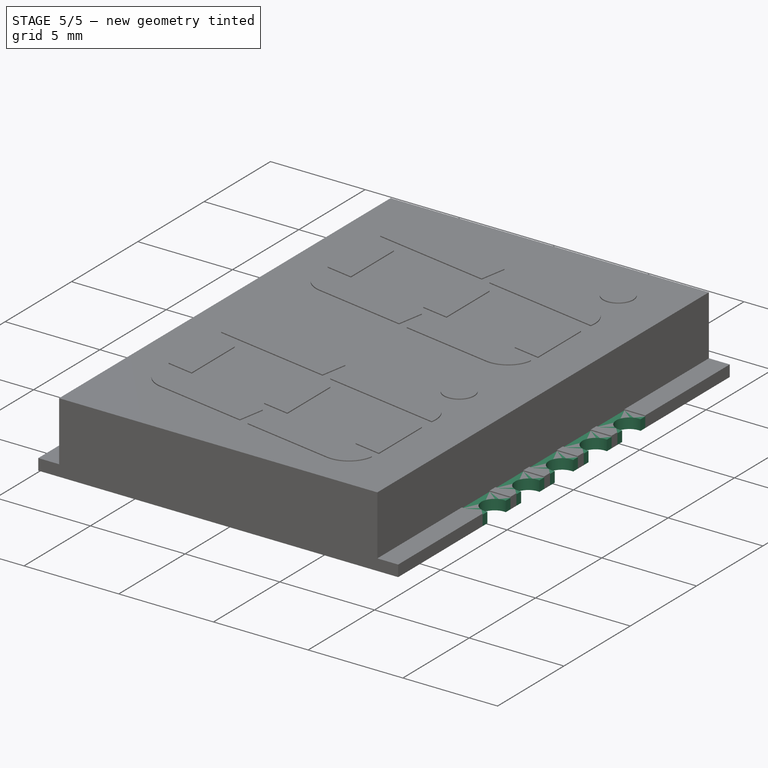
[diagram: stage 5 of 5 — iso view after this stage's code; geometry added in this stage tinted green]
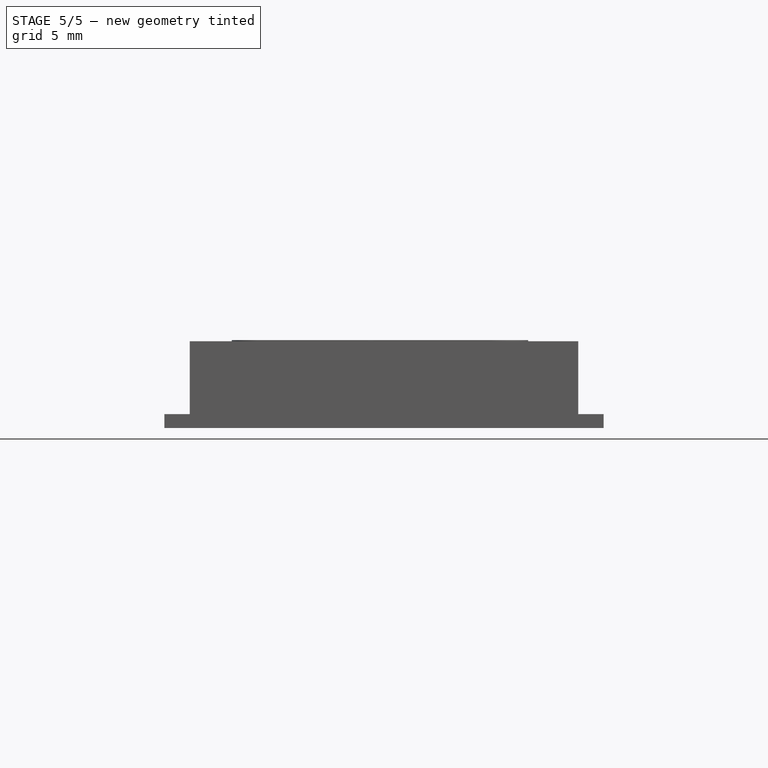
[diagram: stage 5 of 5 — front view after this stage's code; geometry added in this stage tinted green]
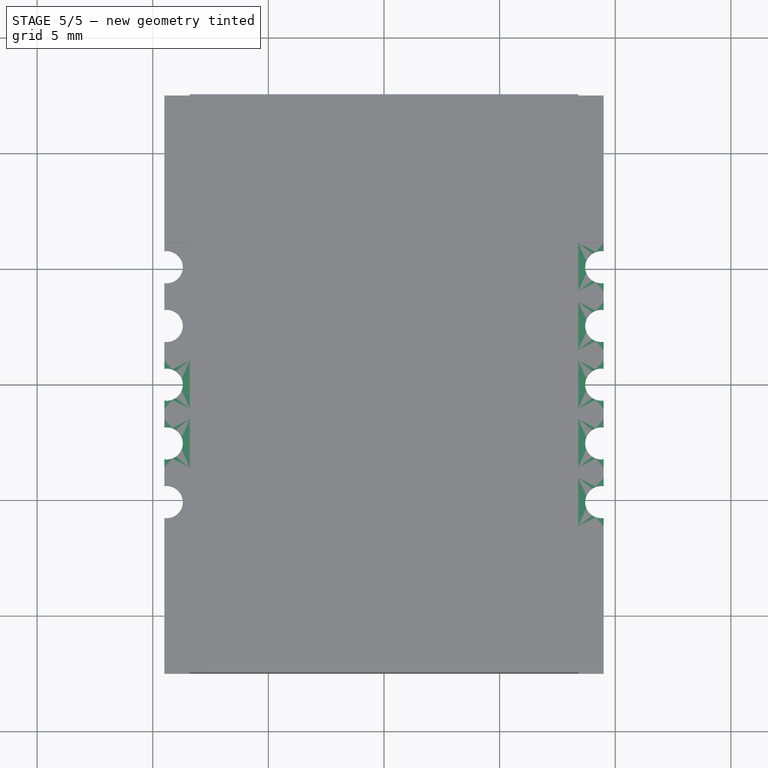
[diagram: stage 5 of 5 — top view after this stage's code; geometry added in this stage tinted green]
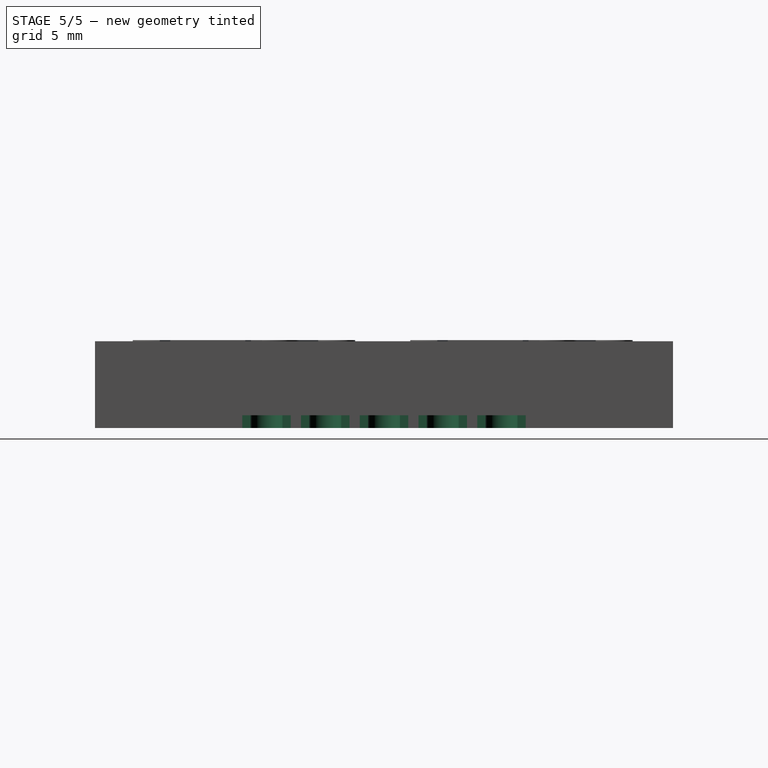
[diagram: stage 5 of 5 — right view after this stage's code; geometry added in this stage tinted green]
FEATURE [Part::Box] Box012  label="Kub012"
  AttacherType = Attacher::AttachEngine3D
  Height = 0.55
  Length = 1.1
  Placement = pos=(8.4,-1.05,0) rot=(0,0,1;0rad)
  Width = 2.1
FEATURE [Part::Cylinder] Cylinder
  Angle = 360
  AttacherType = Attacher::AttachEngine3D
  Height = 0.55
  Placement = pos=(9.4,0,0) rot=(0,0,1;0rad)
  Radius = 0.7
FEATURE [Part::Cut] Cut012
  Base = -> Box012
  Tool = -> Cylinder
FEATURE [Part::Box] Box013  label="Kub013"
  AttacherType = Attacher::AttachEngine3D
  Height = 0.55
  Length = 1.1
  Placement = pos=(8.4,-1.05,0) rot=(0,0,1;0rad)
  Width = 2.1
FEATURE [Part::Cylinder] Cylinder001
  Angle = 360
  AttacherType = Attacher::AttachEngine3D
  Height = 0.55
  Placement = pos=(9.4,0,0) rot=(0,0,1;0rad)
  Radius = 0.7
FEATURE [Part::Cut] Cut023
  Base = -> Box013
  Placement = pos=(0,2.54,0) rot=(0,0,1;0rad)
  Tool = -> Cylinder001
FEATURE [Part::Box] Box014  label="Kub014"
  AttacherType = Attacher::AttachEngine3D
  Height = 0.55
  Length = 1.1
  Placement = pos=(8.4,-1.05,0) rot=(0,0,1;0rad)
  Width = 2.1
FEATURE [Part::Cylinder] Cylinder002
  Angle = 360
  AttacherType = Attacher::AttachEngine3D
  Height = 0.55
  Placement = pos=(9.4,0,0) rot=(0,0,1;0rad)
  Radius = 0.7
FEATURE [Part::Cut] Cut024
  Base = -> Box014
  Placement = pos=(0,5.08,0) rot=(0,0,1;0rad)
  Tool = -> Cylinder002
FEATURE [Part::Box] Box015  label="Kub015"
  AttacherType = Attacher::AttachEngine3D
  Height = 0.55
  Length = 1.1
  Placement = pos=(8.4,-1.05,0) rot=(0,0,1;0rad)
  Width = 2.1
FEATURE [Part::Cylinder] Cylinder003
  Angle = 360
  AttacherType = Attacher::AttachEngine3D
  Height = 0.55
  Placement = pos=(9.4,0,0) rot=(0,0,1;0rad)
  Radius = 0.7
FEATURE [Part::Cut] Cut025
  Base = -> Box015
  Placement = pos=(0,-2.54,0) rot=(0,0,1;0rad)
  Tool = -> Cylinder003
FEATURE [Part::Box] Box016  label="Kub016"
  AttacherType = Attacher::AttachEngine3D
  Height = 0.55
  Length = 1.1
  Placement = pos=(8.4,-1.05,0) rot=(0,0,1;0rad)
  Width = 2.1
FEATURE [Part::Cylinder] Cylinder004
  Angle = 360
  AttacherType = Attacher::AttachEngine3D
  Height = 0.55
  Placement = pos=(9.4,0,0) rot=(0,0,1;0rad)
  Radius = 0.7
FEATURE [Part::Cut] Cut026
  Base = -> Box016
  Placement = pos=(0,-5.08,0) rot=(0,0,1;0rad)
  Tool = -> Cylinder004
FEATURE [Part::Box] Box017  label="Kub017"
  AttacherType = Attacher::AttachEngine3D
  Height = 0.55
  Length = 1.1
  Placement = pos=(8.4,-1.05,0) rot=(0,0,1;0rad)
  Width = 2.1
FEATURE [Part::Cylinder] Cylinder005
  Angle = 360
  AttacherType = Attacher::AttachEngine3D
  Height = 0.55
  Placement = pos=(9.4,0,0) rot=(0,0,1;0rad)
  Radius = 0.7
FEATURE [Part::Cut] Cut027
  Base = -> Box017
  Placement = pos=(0,0,0) rot=(0,0,1;3.14159rad)
  Tool = -> Cylinder005
FEATURE [Part::Box] Box018  label="Kub018"
  AttacherType = Attacher::AttachEngine3D
  Height = 0.55
  Length = 1.1
  Placement = pos=(8.4,-1.05,0) rot=(0,0,1;0rad)
  Width = 2.1
FEATURE [Part::Cylinder] Cylinder006
  Angle = 360
  AttacherType = Attacher::AttachEngine3D
  Height = 0.55
  Placement = pos=(9.4,0,0) rot=(0,0,1;0rad)
  Radius = 0.7
FEATURE [Part::Cut] Cut028
  Base = -> Box018
  Placement = pos=(0,-2.54,0) rot=(0,0,1;3.14159rad)
  Tool = -> Cylinder006
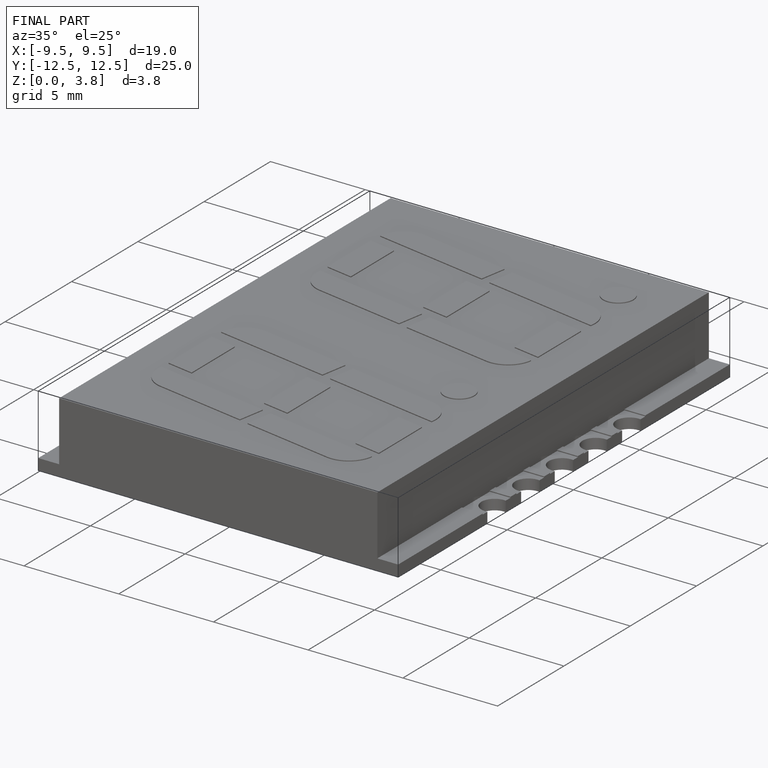
[diagram: finished part — iso view with bounding-box wireframe]
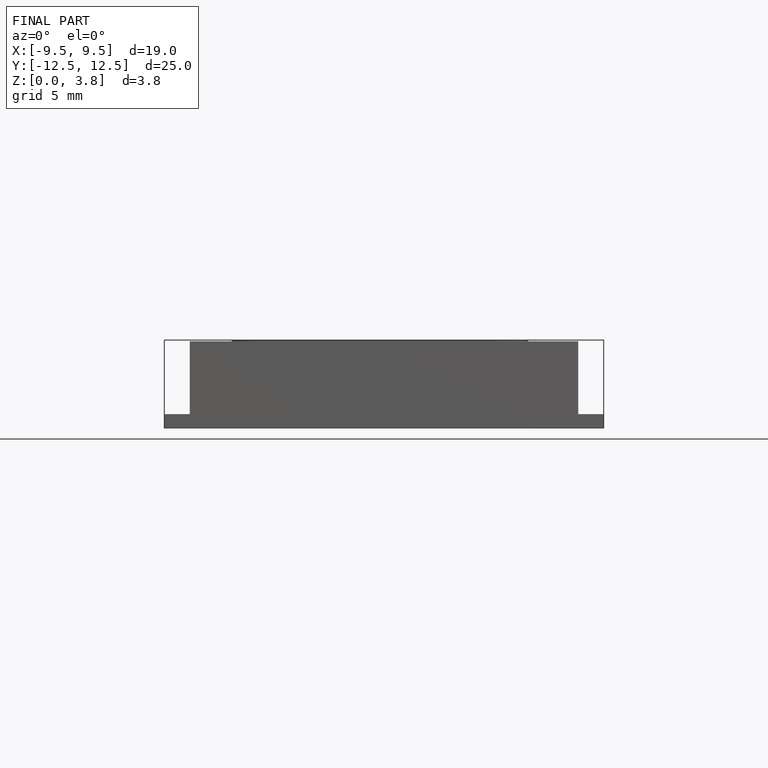
[diagram: finished part — front view with bounding-box wireframe]
